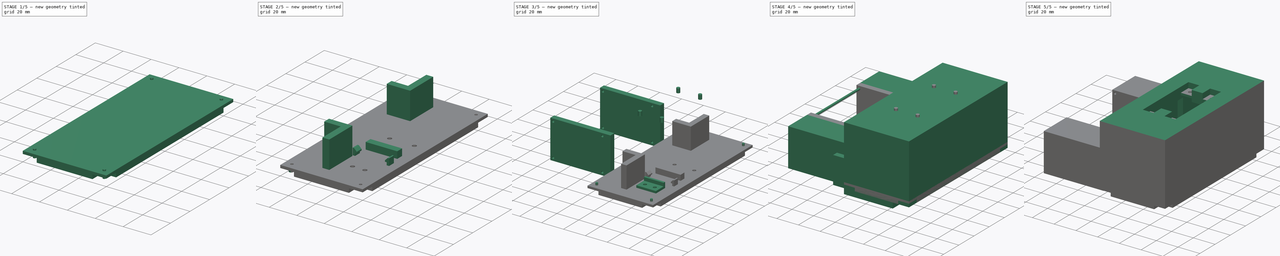
[diagram: build sequence overview — one tinted view per stage of 5, left to right]
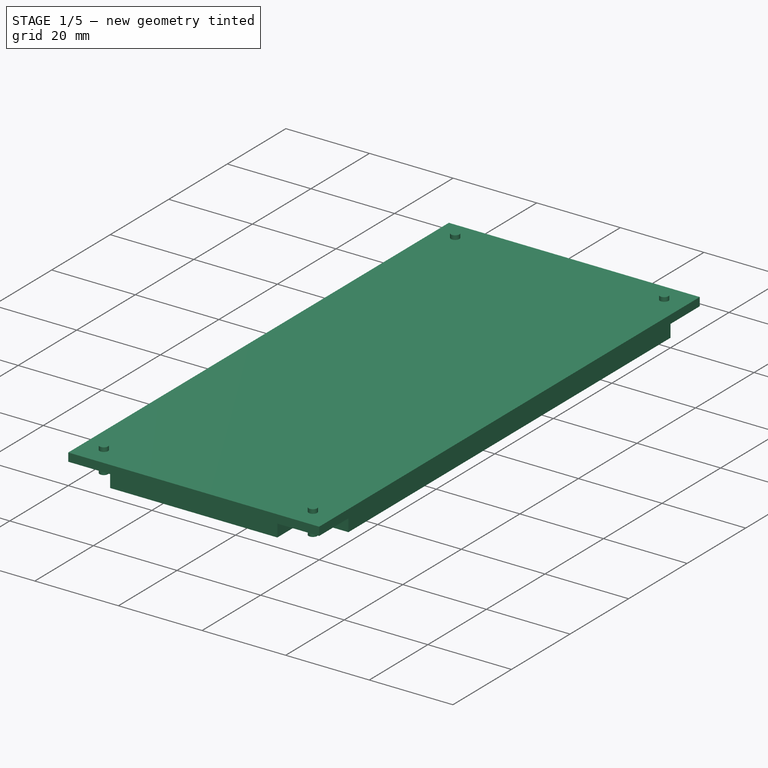
[diagram: stage 1 of 5 — iso view after this stage's code; geometry added in this stage tinted green]
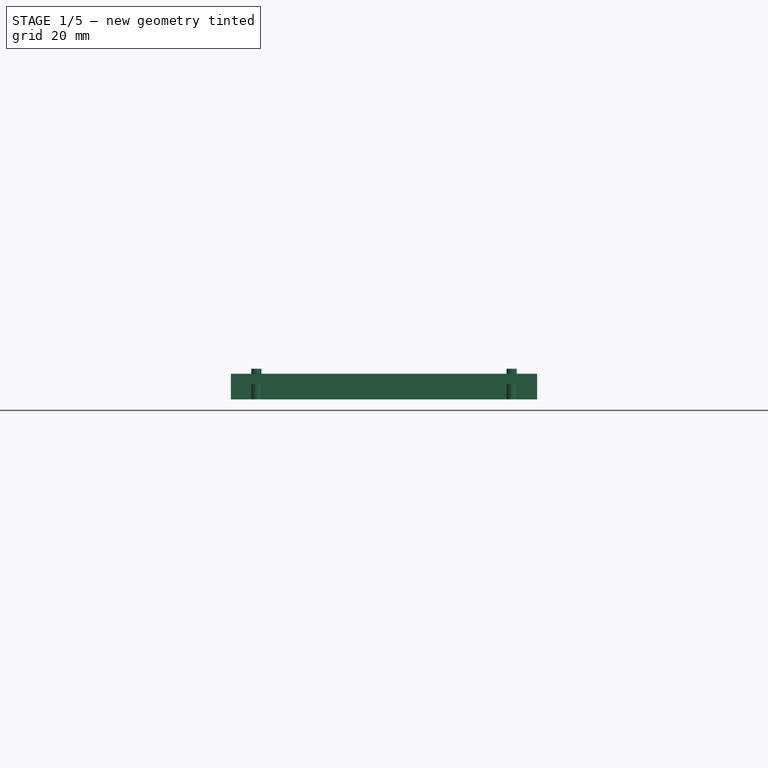
[diagram: stage 1 of 5 — front view after this stage's code; geometry added in this stage tinted green]
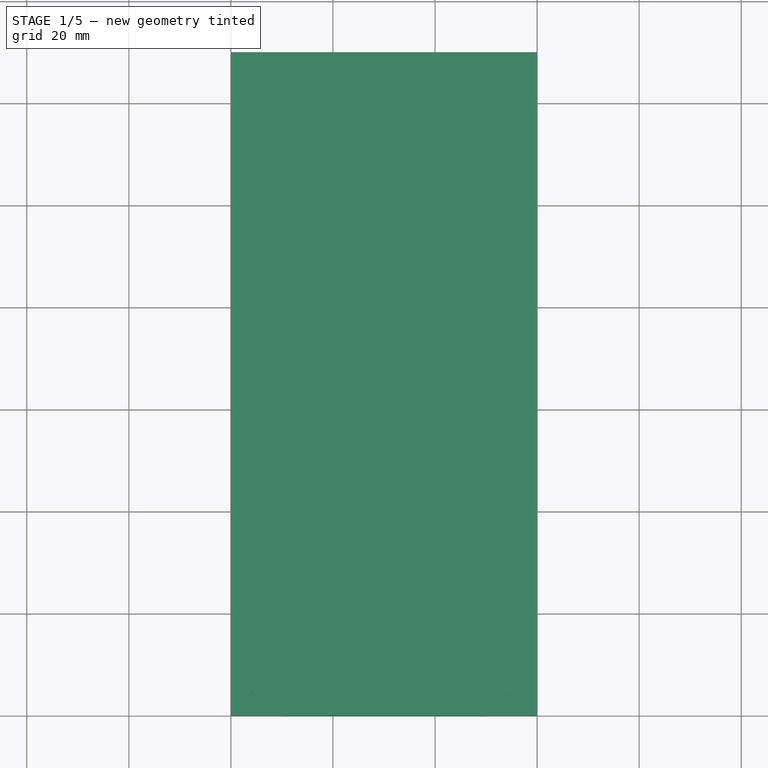
[diagram: stage 1 of 5 — top view after this stage's code; geometry added in this stage tinted green]
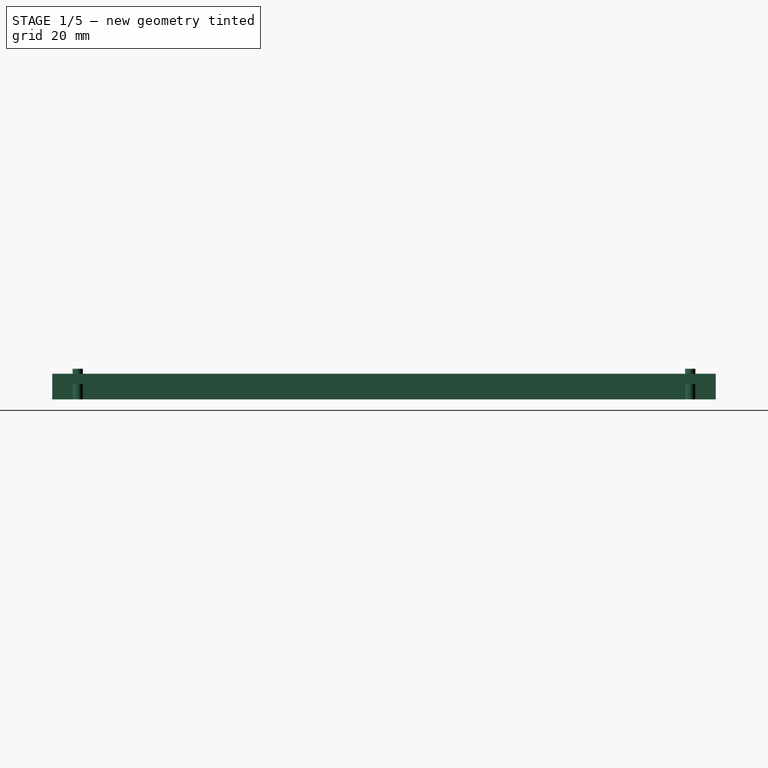
[diagram: stage 1 of 5 — right view after this stage's code; geometry added in this stage tinted green]
FCSTD DOCUMENT  (FreeCAD 0.16R6712 (Git))
Label: Locomocion
License: All rights reserved
LicenseURL: http://en.wikipedia.org/wiki/All_rights_reserved
objects: Part::Box×18, Part::FeaturePython×16, Part::Cut×16, Part::Cylinder×10, Part::MultiFuse×7, Sketcher::SketchObject×1, PartDesign::Pad×1, App::DocumentObjectGroup×1, Part::Chamfer×1
note: 71 computed .brp shape members not serialized (recipe doc carries the construction recipe); baked Part::Feature solids carry a one-line shape summary decoded from their .brp

FEATURE [Part::Box] Box010  label="Tapa_base"
  Height = 5
  Length = 60
  Width = 130
FEATURE [Part::Box] Box011  label="huecoTapa"
  Height = 3
  Length = 10
  Width = 10
FEATURE [Part::FeaturePython] Array008  label="huecosTapa"  # Draft array (typed FeaturePython)
  Angle = 360
  ArrayType = 0
  Axis = (0,0,1)
  Base = -> Box011
  Center = (0,0,0)
  Fuse = false
  IntervalAxis = (0,0,0)
  IntervalX = (50,0,0)
  IntervalY = (0,120,0)
  IntervalZ = (0,0,0)
  NumberPolar = 1
  NumberX = 2
  NumberY = 2
  NumberZ = 1
FEATURE [Part::Cut] Cut008  label="Tapa_base_2"
  Base = -> Box010
  Tool = -> Array008
FEATURE [Part::Cylinder] Cylinder003  label="AgujeroT"
  Angle = 360
  Height = 6
  Radius = 1
FEATURE [Part::FeaturePython] Array009  label="AgujerosT"  # Draft array (typed FeaturePython)
  Angle = 360
  ArrayType = 0
  Axis = (0,0,1)
  Base = -> Cylinder003
  Center = (0,0,0)
  Fuse = false
  IntervalAxis = (0,0,0)
  IntervalX = (50,0,0)
  IntervalY = (0,120,0)
  IntervalZ = (0,0,0)
  NumberPolar = 1
  NumberX = 2
  NumberY = 2
  NumberZ = 1
  Placement = pos=(5,5,0) rot=(0,0,1;0rad)
FEATURE [Part::Cylinder] Cylinder005  label="Cilindro"
  Angle = 360
  Height = 3
  Radius = 3.5
FEATURE [Part::Cylinder] Cylinder006  label="Cilindro001"
  Angle = 360
  Height = 5
  Radius = 1.5
FEATURE [Part::MultiFuse] Fusion004
  Shapes = -> [Cylinder005,Cylinder006]
FEATURE [Part::FeaturePython] Array014  label="AgujerosControlMotor"  # Draft array (typed FeaturePython)
  Angle = 360
  ArrayType = 0
  Axis = (0,0,1)
  Base = -> Fusion004
  Center = (0,0,0)
  Fuse = false
  IntervalAxis = (0,0,0)
  IntervalX = (18,0,0)
  IntervalY = (0,0,0)
  IntervalZ = (0,0,0)
  NumberPolar = 1
  NumberX = 2
  NumberY = 1
  NumberZ = 1
  Placement = pos=(32,68,0) rot=(0,0,1;0rad)
FEATURE [Part::Cylinder] Cylinder008  label="Tapa_base_AgujeroSoporteInt"
  Angle = 360
  Height = 2
  Placement = pos=(36.5,23,8) rot=(0,0,1;0rad)
  Radius = 1.5
FEATURE [Part::Cylinder] Cylinder009  label="Tapa_base_AgujeroSoporteExt"
  Angle = 360
  Height = 3
  Placement = pos=(36.5,23,5) rot=(0,0,1;0rad)
  Radius = 3.5
FEATURE [Part::MultiFuse] Fusion006  label="Tapa_base_AgujeroSoporte"
  Shapes = -> [Cylinder008,Cylinder009]
FEATURE [Part::FeaturePython] Array016  label="Tapa_base_AgujerosSoporte"  # Draft array (typed FeaturePython)
  Angle = 360
  ArrayType = 0
  Axis = (0,0,1)
  Base = -> Fusion006
  Center = (0,0,0)
  Fuse = false
  IntervalAxis = (0,0,0)
  IntervalX = (9,0,0)
  IntervalY = (0,0,0)
  IntervalZ = (0,0,0)
  NumberPolar = 1
  NumberX = 2
  NumberY = 1
  NumberZ = 1
  Placement = pos=(0,0,-5) rot=(0,0,1;0rad)
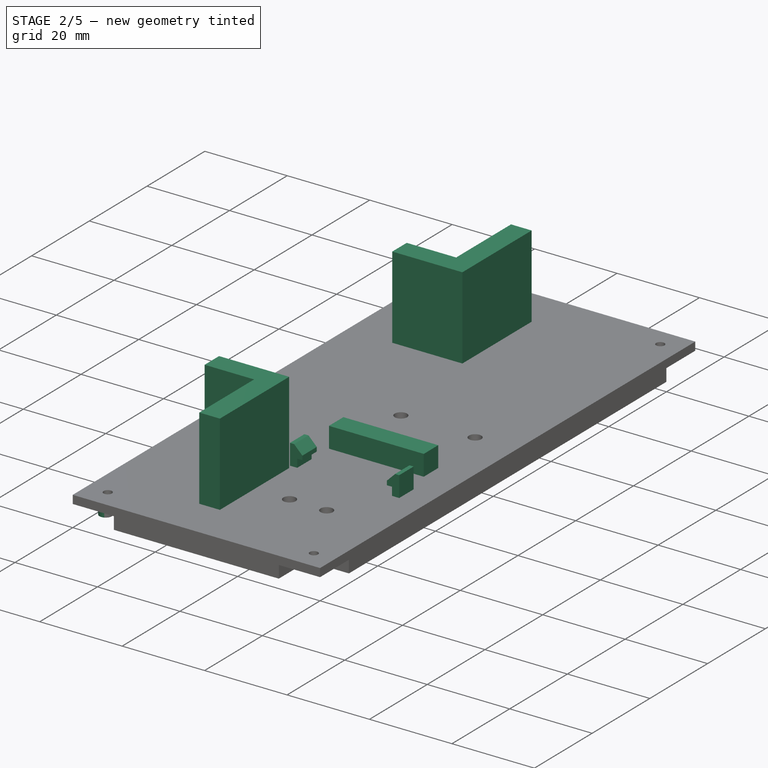
[diagram: stage 2 of 5 — iso view after this stage's code; geometry added in this stage tinted green]
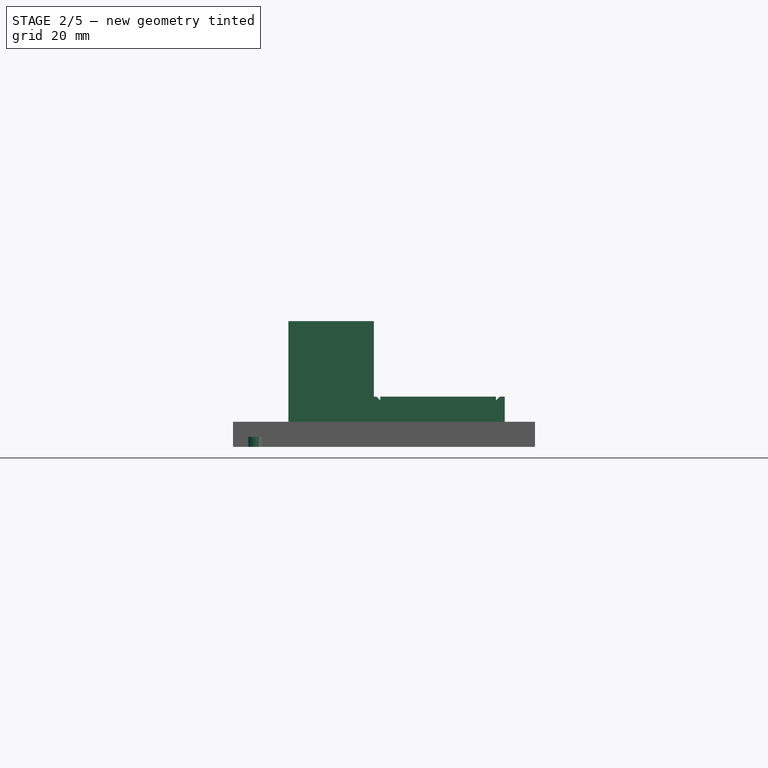
[diagram: stage 2 of 5 — front view after this stage's code; geometry added in this stage tinted green]
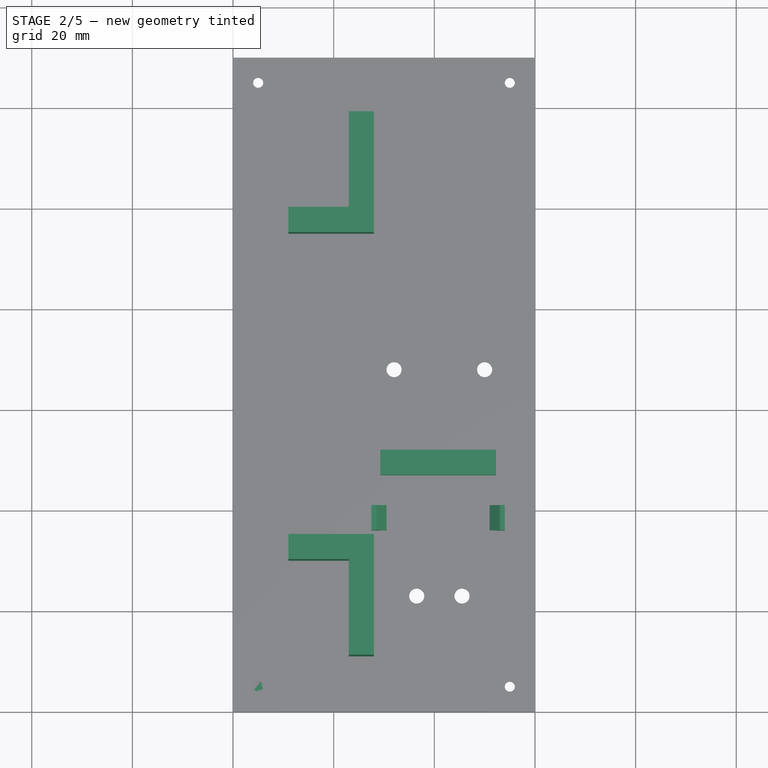
[diagram: stage 2 of 5 — top view after this stage's code; geometry added in this stage tinted green]
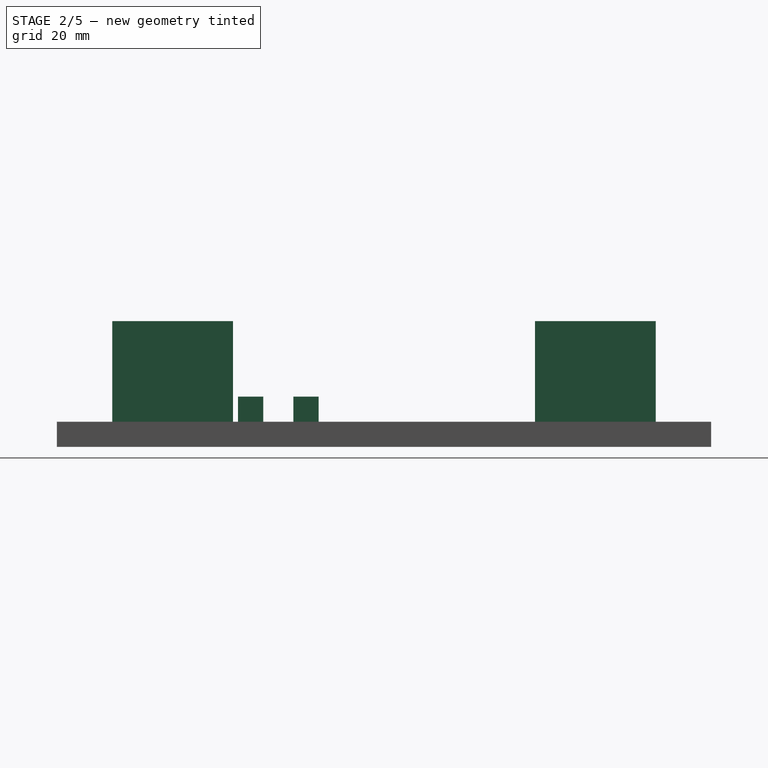
[diagram: stage 2 of 5 — right view after this stage's code; geometry added in this stage tinted green]
FEATURE [Part::Cut] Cut009  label="Tapa_base_3"
  Base = -> Cut008
  Tool = -> Array009
FEATURE [Part::Box] Box013  label="Clavija5v_base"
  Height = 5
  Length = 3
  Width = 5
FEATURE [Part::FeaturePython] Array012  label="Clavijas5v_base"  # Draft array (typed FeaturePython)
  Angle = 360
  ArrayType = 0
  Axis = (0,0,1)
  Base = -> Box013
  Center = (0,0,0)
  Fuse = false
  IntervalAxis = (0,0,0)
  IntervalX = (23.5,0,0)
  IntervalY = (0,0,0)
  IntervalZ = (0,0,0)
  NumberPolar = 1
  NumberX = 2
  NumberY = 1
  NumberZ = 1
FEATURE [Part::Box] Box014  label="Clavijas5v_hueco"
  Height = 2
  Length = 23
  Placement = pos=(1.75,0,0) rot=(0,0,1;0rad)
  Width = 5
FEATURE [Part::Cut] Cut011  label="Clavijas5v_base_2"
  Base = -> Array012
  Tool = -> Box014
FEATURE [Part::Box] Box015  label="Pared5v"
  Height = 5
  Length = 23
  Placement = pos=(1.75,22,0) rot=(0,0,1;0rad)
  Width = 5
FEATURE [Part::Cut] Cut012  label="Tapa_base_4"
  Base = -> Cut009
  Tool = -> Array014
FEATURE [Sketcher::SketchObject] Sketch
  ExternalGeometry = -> [Cut012]
  Placement = pos=(0,0,5) rot=(0,0,1;0rad)
  Support = -> Cut012 [Face3]
  sketch-geometry (20):
    g0: LineSegment StartX=11 StartY=100 StartZ=0 EndX=11 EndY=95 EndZ=0
    g1: LineSegment StartX=11 StartY=95 StartZ=0 EndX=28 EndY=95 EndZ=0
    g2: LineSegment StartX=28 StartY=95 StartZ=0 EndX=28 EndY=119 EndZ=0
    g3: LineSegment StartX=28 StartY=119 StartZ=0 EndX=23 EndY=119 EndZ=0
    g4: LineSegment StartX=23 StartY=119 StartZ=0 EndX=23 EndY=100 EndZ=0
    g5: LineSegment StartX=23 StartY=100 StartZ=0 EndX=11 EndY=100 EndZ=0
    g6: LineSegment [constr] StartX=0 StartY=100 StartZ=0 EndX=11 EndY=100 EndZ=0
    g7: LineSegment [constr] StartX=11 StartY=100 StartZ=0 EndX=11 EndY=95 EndZ=0
    g8: LineSegment [constr] StartX=11 StartY=95 StartZ=0 EndX=0 EndY=95 EndZ=0
    g9: LineSegment [constr] StartX=0 StartY=95 StartZ=0 EndX=0 EndY=100 EndZ=0
    g10: LineSegment [constr] StartX=11 StartY=35 StartZ=0 EndX=0 EndY=35 EndZ=0
    g11: LineSegment [constr] StartX=0 StartY=35 StartZ=0 EndX=0 EndY=30 EndZ=0
    g12: LineSegment [constr] StartX=0 StartY=30 StartZ=0 EndX=11 EndY=30 EndZ=0
    g13: LineSegment [constr] StartX=11 StartY=30 StartZ=0 EndX=11 EndY=35 EndZ=0
    g14: LineSegment StartX=11 StartY=35 StartZ=0 EndX=28 EndY=35 EndZ=0
    g15: LineSegment StartX=28 StartY=35 StartZ=0 EndX=28 EndY=11 EndZ=0
    g16: LineSegment StartX=28 StartY=11 StartZ=0 EndX=23 EndY=11 EndZ=0
    g17: LineSegment StartX=23 StartY=11 StartZ=0 EndX=23 EndY=30 EndZ=0
    g18: LineSegment StartX=23 StartY=30 StartZ=0 EndX=11 EndY=30 EndZ=0
    g19: LineSegment StartX=11 StartY=30 StartZ=0 EndX=11 EndY=35 EndZ=0
  constraints (62):
    c: Coincident(g0,g1)
    c: Horizontal(g1)
    c: Coincident(g1,g2)
    c: Coincident(g2,g3)
    c: Coincident(g3,g4)
    c: Vertical(g4)
    c: Coincident(g4,g5)
    c: Coincident(g5,g0)
    c: Horizontal(g5)
    c: Horizontal(g3)
    c: Vertical(g2)
    c: Vertical(g0)
    c: DistanceY(g2,g2) = 24
    c: DistanceY(g0,g0) = 5
    c: DistanceX(g1,g1) = 17
    c: DistanceX(g5,g5) = 12
    c: Coincident(g6,g7)
    c: Coincident(g7,g8)
    c: Coincident(g8,g9)
    c: Coincident(g9,g6)
    c: Horizontal(g6)
    c: Horizontal(g8)
    c: Vertical(g7)
    c: Vertical(g9)
    c: Equal(g6,g8)
    c: Equal(g9,g7)
    c: DistanceX(g8,g8) = 11
    c: DistanceY(g9,g9) = 5
    c: Coincident(g10,g11)
    c: Coincident(g11,g12)
    c: Coincident(g12,g13)
    c: Coincident(g13,g10)
    c: Horizontal(g10)
    c: Horizontal(g12)
    c: Vertical(g11)
    c: Vertical(g13)
    c: Equal(g10,g12)
    c: Equal(g13,g11)
    c: Equal(g8,g12) = 11
    c: Equal(g9,g13) = 5
    c: PointOnObject(g6,g-4)
    c: DistanceY(g6,g-4) = 30
    c: Coincident(g0,g7)
    c: PointOnObject(g11,g-4)
    c: DistanceY(g-1,g11) = 30
    c: Horizontal(g14)
    c: Coincident(g14,g15)
    c: Vertical(g15)
    c: Coincident(g15,g16)
    c: Horizontal(g16)
    c: Coincident(g16,g17)
    c: Vertical(g17)
    c: Coincident(g17,g18)
    c: Horizontal(g18)
    c: Coincident(g18,g19)
    c: Coincident(g19,g14)
    c: Vertical(g19)
    c: DistanceY(g15,g15) = 24
    c: DistanceX(g18,g18) = 12
    c: DistanceX(g14,g14) = 17
    c: DistanceY(g19,g19) = 5
    c: Coincident(g12,g18)
FEATURE [PartDesign::Pad] Pad  label="Tapa_base_5"
  Length = 20
  Length2 = 100
  Sketch = -> Sketch
  Type = 0
FEATURE [Part::Cylinder] Cylinder007  label="Soporte5v_agujero"
  Angle = 360
  Height = 2
  Radius = 1.5
FEATURE [Part::FeaturePython] Array015  label="Soporte5v_agujeros"  # Draft array (typed FeaturePython)
  Angle = 360
  ArrayType = 0
  Axis = (0,0,1)
  Base = -> Cylinder007
  Center = (0,0,0)
  Fuse = false
  IntervalAxis = (0,0,0)
  IntervalX = (9,0,0)
  IntervalY = (0,0,0)
  IntervalZ = (0,0,0)
  NumberPolar = 1
  NumberX = 2
  NumberY = 1
  NumberZ = 1
  Placement = pos=(4.5,5,0) rot=(0,0,1;0rad)
FEATURE [Part::Chamfer] Chamfer  label="Clavijas5v"
  Base = -> Cut011
  Edges = 2 edges r=2: [Edge11,Edge20]
  Placement = pos=(0,11,0) rot=(0,0,1;0rad)
FEATURE [Part::MultiFuse] Fusion005  label="ParedYClavijas"
  Placement = pos=(27.5,25,5) rot=(0,0,1;0rad)
  Shapes = -> [Chamfer,Box015]
FEATURE [Part::Cut] Cut015  label="Tapa_base_6"
  Base = -> Pad
  Tool = -> Array016
FEATURE [Part::MultiFuse] Fusion007  label="Tapa"
  Shapes = -> [Fusion005,Cut015]
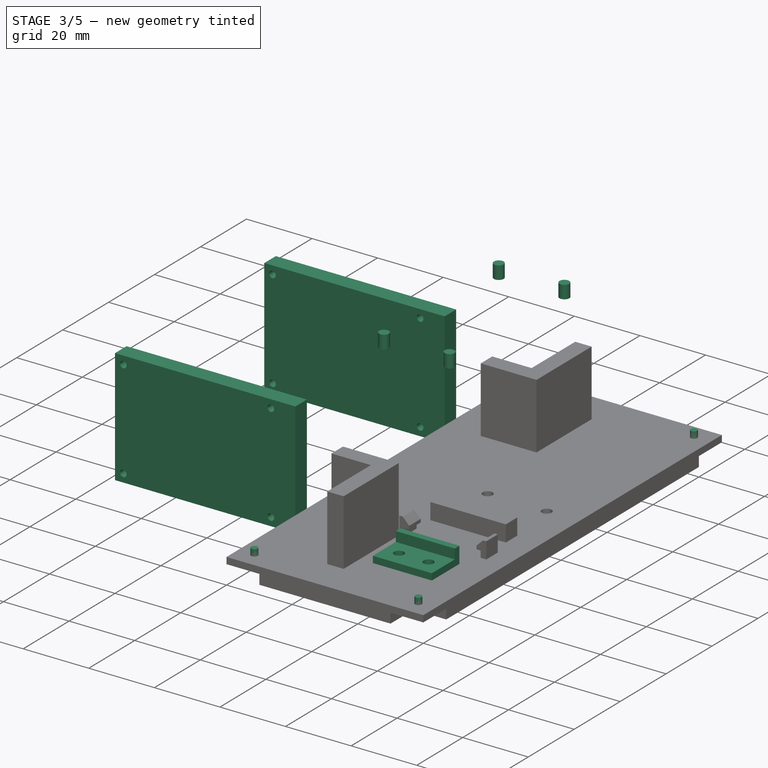
[diagram: stage 3 of 5 — iso view after this stage's code; geometry added in this stage tinted green]
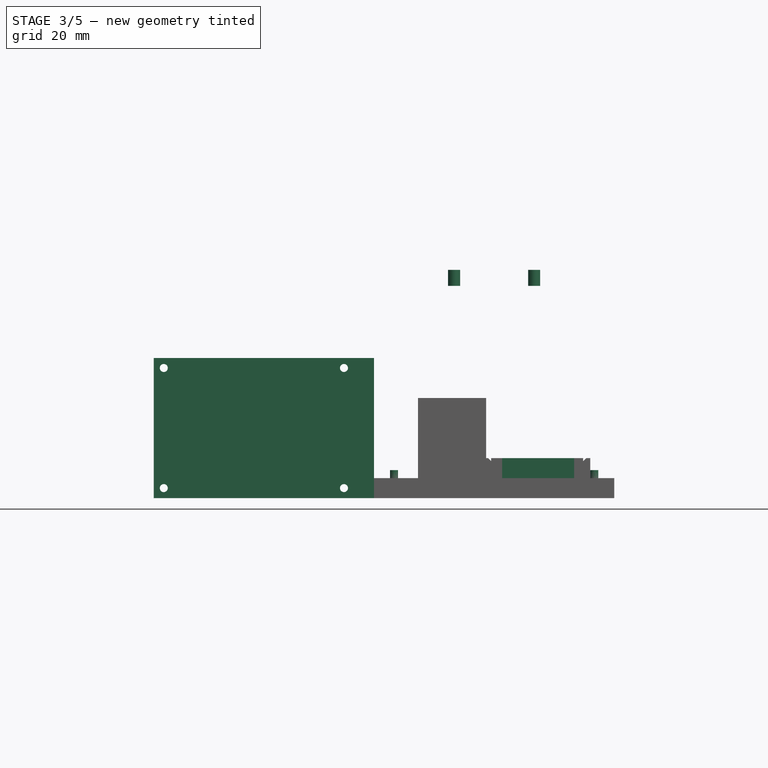
[diagram: stage 3 of 5 — front view after this stage's code; geometry added in this stage tinted green]
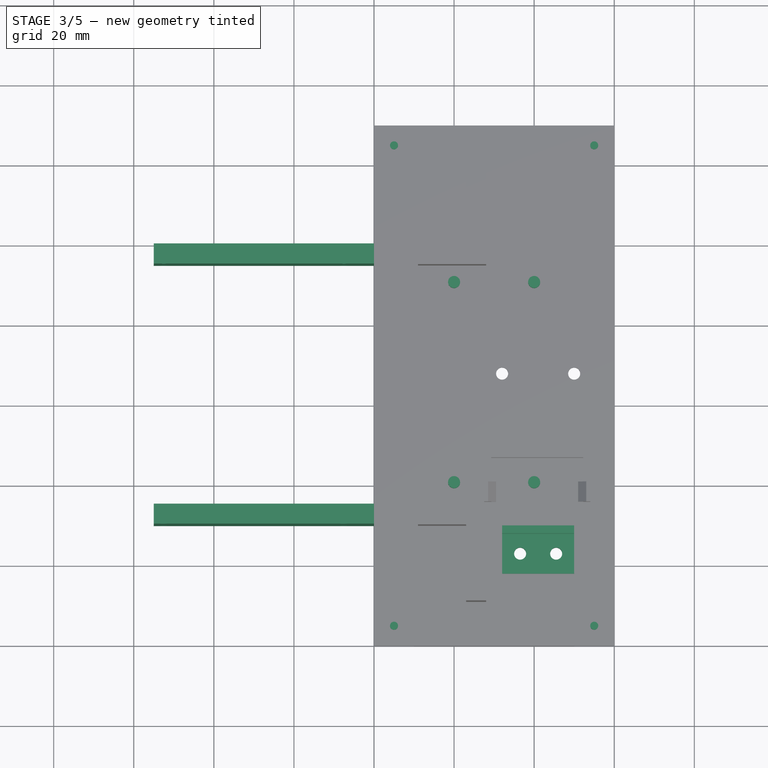
[diagram: stage 3 of 5 — top view after this stage's code; geometry added in this stage tinted green]
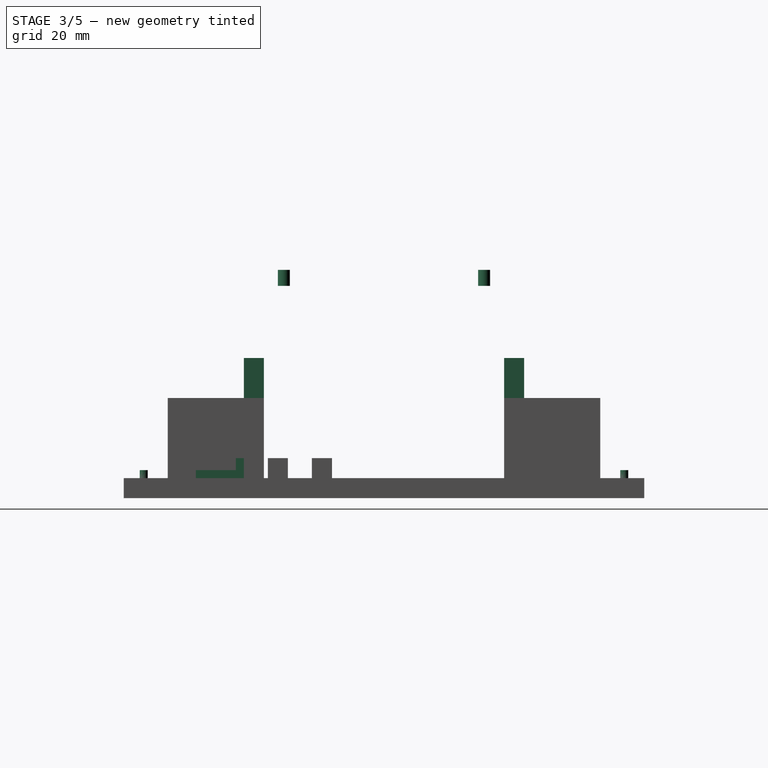
[diagram: stage 3 of 5 — right view after this stage's code; geometry added in this stage tinted green]
FEATURE [Part::Cylinder] Cylinder001  label="Agujero_conector"
  Angle = 360
  Height = 4
  Radius = 1.5
FEATURE [Part::FeaturePython] Array006  label="Agujeros_conector"  # Draft array (typed FeaturePython)
  Angle = 360
  ArrayType = 0
  Axis = (0,0,1)
  Base = -> Cylinder001
  Center = (0,0,0)
  Fuse = false
  IntervalAxis = (0,0,0)
  IntervalX = (20,0,0)
  IntervalY = (0,50,0)
  IntervalZ = (0,0,0)
  NumberPolar = 1
  NumberX = 2
  NumberY = 2
  NumberZ = 1
  Placement = pos=(20,40,53) rot=(0,0,1;0rad)
FEATURE [Part::Cylinder] Cylinder002  label="AgujeroTapa"
  Angle = 360
  Height = 3
  Radius = 1
FEATURE [Part::FeaturePython] Array007  label="AgujerosTapa"  # Draft array (typed FeaturePython)
  Angle = 360
  ArrayType = 0
  Axis = (0,0,1)
  Base = -> Cylinder002
  Center = (0,0,0)
  Fuse = false
  IntervalAxis = (0,0,0)
  IntervalX = (50,0,0)
  IntervalY = (0,120,0)
  IntervalZ = (0,0,0)
  NumberPolar = 1
  NumberX = 2
  NumberY = 2
  NumberZ = 1
  Placement = pos=(5,5,4) rot=(0,0,1;0rad)
FEATURE [Part::Box] Box012  label="TapaMotor_base"
  Height = 35
  Length = 55
  Width = 5
FEATURE [Part::Cylinder] Cylinder004  label="AgujeroTapaMotor"
  Angle = 360
  Height = 10
  Placement = pos=(0,0,0) rot=(1,0,0;1.5708rad)
  Radius = 1
FEATURE [Part::FeaturePython] Array010  label="AgujerosTapaMotor"  # Draft array (typed FeaturePython)
  Angle = 360
  ArrayType = 0
  Axis = (0,0,1)
  Base = -> Cylinder004
  Center = (0,0,0)
  Fuse = false
  IntervalAxis = (0,0,0)
  IntervalX = (45,0,0)
  IntervalY = (0,0,30)
  IntervalZ = (0,0,0)
  NumberPolar = 1
  NumberX = 2
  NumberY = 2
  NumberZ = 1
  Placement = pos=(2.5,8,2.5) rot=(0,0,1;0rad)
FEATURE [Part::Cut] Cut010  label="TapaMotor_base_2"
  Base = -> Box012
  Tool = -> Array010
FEATURE [Part::FeaturePython] Array011  label="TapasMotor"  # Draft array (typed FeaturePython)
  Angle = 360
  ArrayType = 0
  Axis = (0,0,1)
  Base = -> Cut010
  Center = (0,0,0)
  Fuse = false
  IntervalAxis = (0,0,0)
  IntervalX = (0,0,0)
  IntervalY = (0,65,0)
  IntervalZ = (0,0,0)
  NumberPolar = 1
  NumberX = 1
  NumberY = 2
  NumberZ = 1
  Placement = pos=(-55,30,0) rot=(0,0,1;0rad)
FEATURE [App::DocumentObjectGroup] Grupo  label="Tapa_partes"
  Group = -> [Cut012]
FEATURE [Part::Box] Box016  label="Soporte5v_base"
  Height = 5
  Length = 18
  Width = 12
FEATURE [Part::Box] Box017  label="Soporte5v_hueco"
  Height = 3
  Length = 18
  Placement = pos=(0,0,2) rot=(0,0,1;0rad)
  Width = 10
FEATURE [Part::Cut] Cut013  label="Soporte5v_base_2"
  Base = -> Box016
  Tool = -> Box017
FEATURE [Part::Cut] Cut014  label="Soporte5v_base_3"
  Base = -> Cut013
  Placement = pos=(32,18,5) rot=(0,0,1;0rad)
  Tool = -> Array015
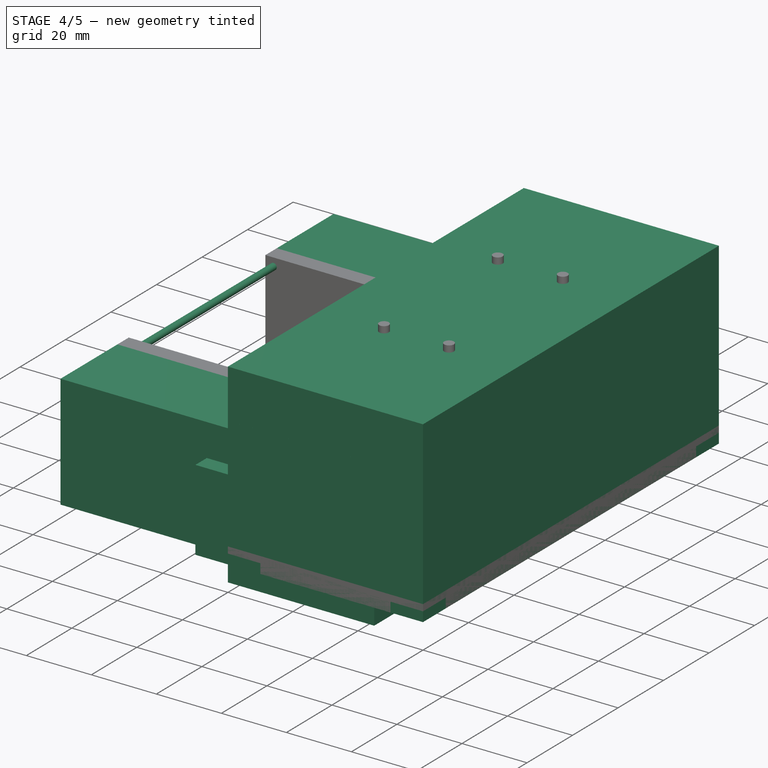
[diagram: stage 4 of 5 — iso view after this stage's code; geometry added in this stage tinted green]
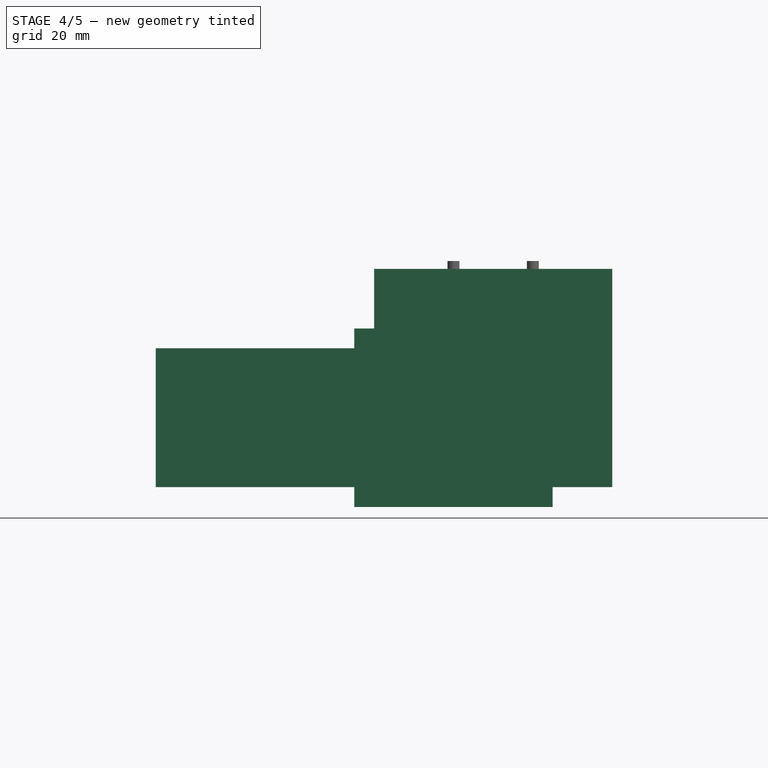
[diagram: stage 4 of 5 — front view after this stage's code; geometry added in this stage tinted green]
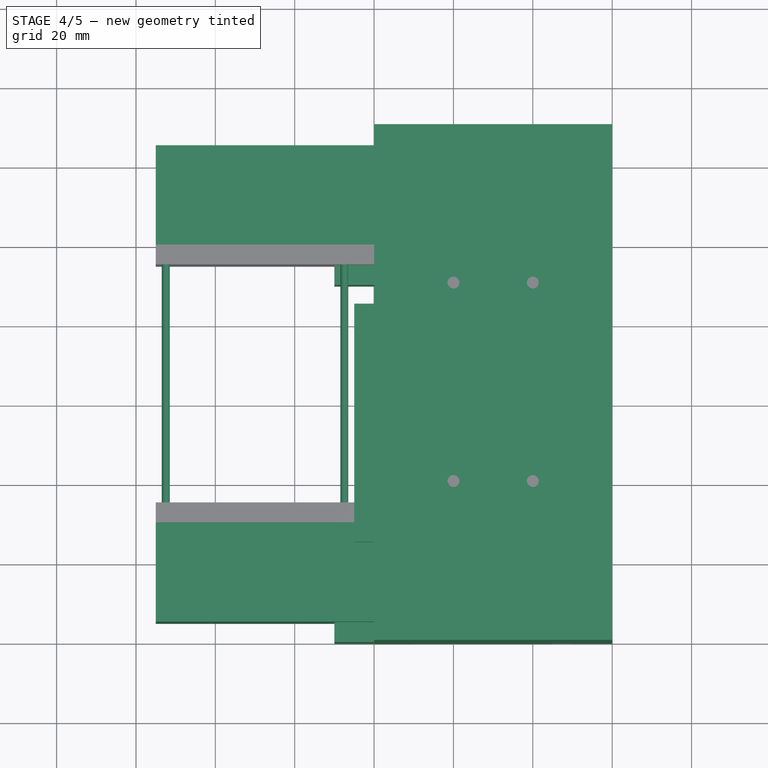
[diagram: stage 4 of 5 — top view after this stage's code; geometry added in this stage tinted green]
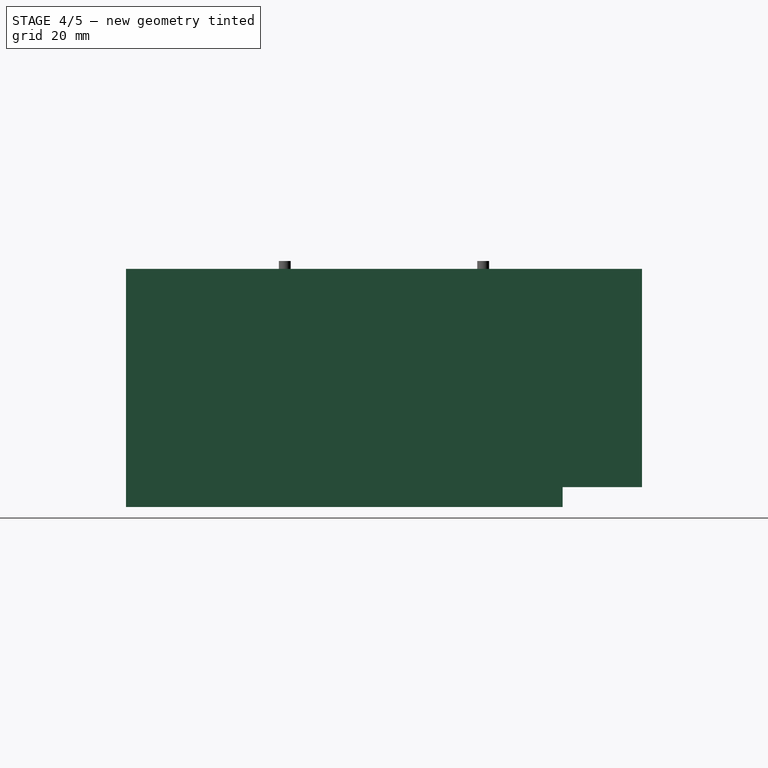
[diagram: stage 4 of 5 — right view after this stage's code; geometry added in this stage tinted green]
FEATURE [Part::Box] Box  label="Motor_ext"
  Height = 35
  Length = 55
  Width = 30
FEATURE [Part::FeaturePython] Array  label="Motores_ext"  # Draft array (typed FeaturePython)
  Angle = 360
  ArrayType = 0
  Axis = (0,0,1)
  Base = -> Box
  Center = (0,0,0)
  Fuse = false
  IntervalAxis = (0,0,0)
  IntervalX = (0,0,0)
  IntervalY = (0,90,0)
  IntervalZ = (0,0,0)
  NumberPolar = 1
  NumberX = 1
  NumberY = 2
  NumberZ = 1
FEATURE [Part::Box] Box001  label="Motor_int"
  Height = 25
  Length = 50
  Width = 20
FEATURE [Part::FeaturePython] Array001  label="Motores_int"  # Draft array (typed FeaturePython)
  Angle = 360
  ArrayType = 0
  Axis = (0,0,1)
  Base = -> Box001
  Center = (0,0,0)
  Fuse = false
  IntervalAxis = (0,0,0)
  IntervalX = (0,0,0)
  IntervalY = (0,90,0)
  IntervalZ = (0,0,0)
  NumberPolar = 1
  NumberX = 1
  NumberY = 2
  NumberZ = 1
  Placement = pos=(5,5,5) rot=(0,0,1;0rad)
FEATURE [Part::Box] Box005  label="Cubo003"
  Height = 45
  Length = 45
  Placement = pos=(0,0,-5) rot=(0,0,1;0rad)
  Width = 110
FEATURE [Part::Box] Box006  label="Cubo004"
  Height = 45
  Length = 5
  Placement = pos=(-5,25,-5) rot=(0,0,1;0rad)
  Width = 60
FEATURE [Part::Box] Box007  label="Cubo005"
  Height = 25
  Length = 10
  Width = 20
FEATURE [Part::FeaturePython] Array004  # Draft array (typed FeaturePython)
  Angle = 360
  ArrayType = 0
  Axis = (0,0,1)
  Base = -> Box007
  Center = (0,0,0)
  Fuse = false
  IntervalAxis = (0,0,0)
  IntervalX = (0,0,0)
  IntervalY = (0,90,0)
  IntervalZ = (0,0,0)
  NumberPolar = 1
  NumberX = 1
  NumberY = 2
  NumberZ = 1
  Placement = pos=(-10,0,0) rot=(0,0,1;0rad)
FEATURE [Part::Box] Box008  label="Carcasa_base"
  Height = 55
  Length = 60
  Width = 130
FEATURE [Part::Cut] Cut  label="Motores"
  Base = -> Array
  Placement = pos=(-55,5,0) rot=(0,0,1;0rad)
  Tool = -> Array001
FEATURE [Part::Box] Box009  label="Cubo006"
  Height = 35
  Length = 55
  Placement = pos=(-55,30,0) rot=(0,0,1;0rad)
  Width = 70
FEATURE [Part::Cut] Cut004  label="CajaMotores"
  Base = -> Cut
  Tool = -> Box009
FEATURE [Part::Cylinder] Cylinder  label="AgujeroMotor"
  Angle = 360
  Height = 74
  Placement = pos=(0,0,0) rot=(1,0,0;1.5708rad)
  Radius = 1
FEATURE [Part::FeaturePython] Array005  label="AgujerosMotor"  # Draft array (typed FeaturePython)
  Angle = 360
  ArrayType = 0
  Axis = (0,0,1)
  Base = -> Cylinder
  Center = (0,0,0)
  Fuse = false
  IntervalAxis = (0,0,0)
  IntervalX = (45,0,0)
  IntervalY = (0,0,30)
  IntervalZ = (0,0,0)
  NumberPolar = 1
  NumberX = 2
  NumberY = 2
  NumberZ = 1
  Placement = pos=(-52.5,102,2.5) rot=(0,0,1;0rad)
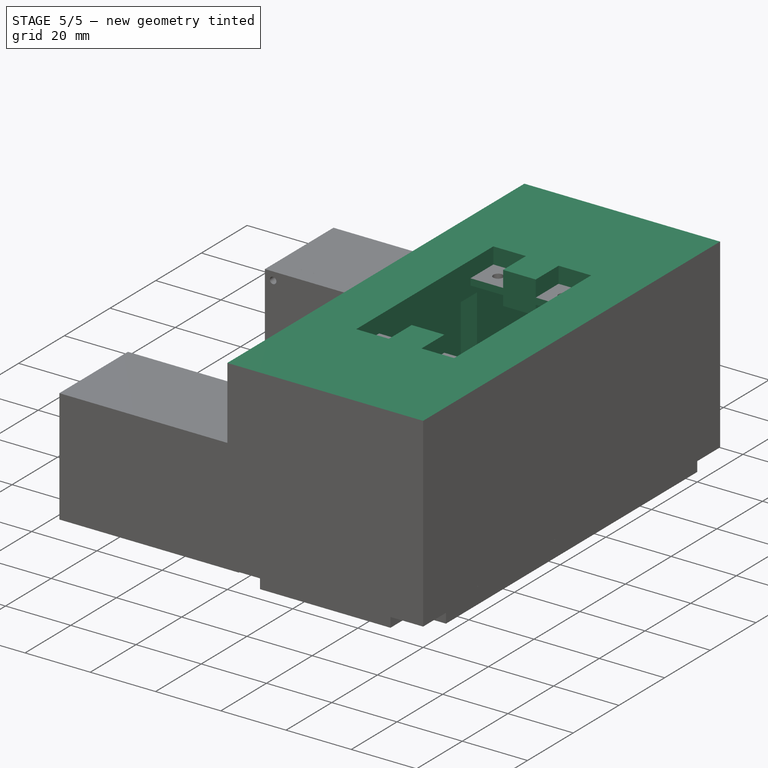
[diagram: stage 5 of 5 — iso view after this stage's code; geometry added in this stage tinted green]
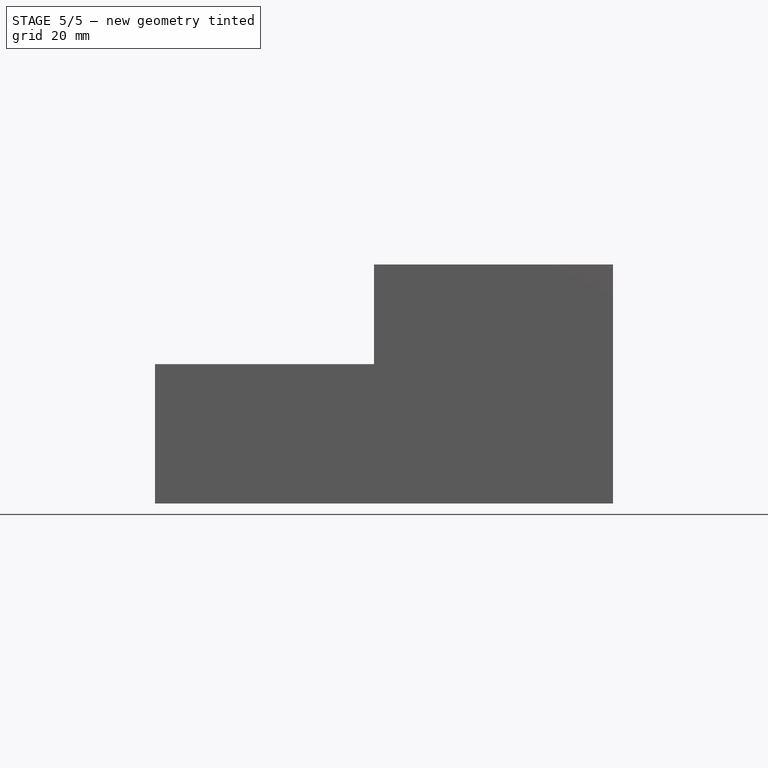
[diagram: stage 5 of 5 — front view after this stage's code; geometry added in this stage tinted green]
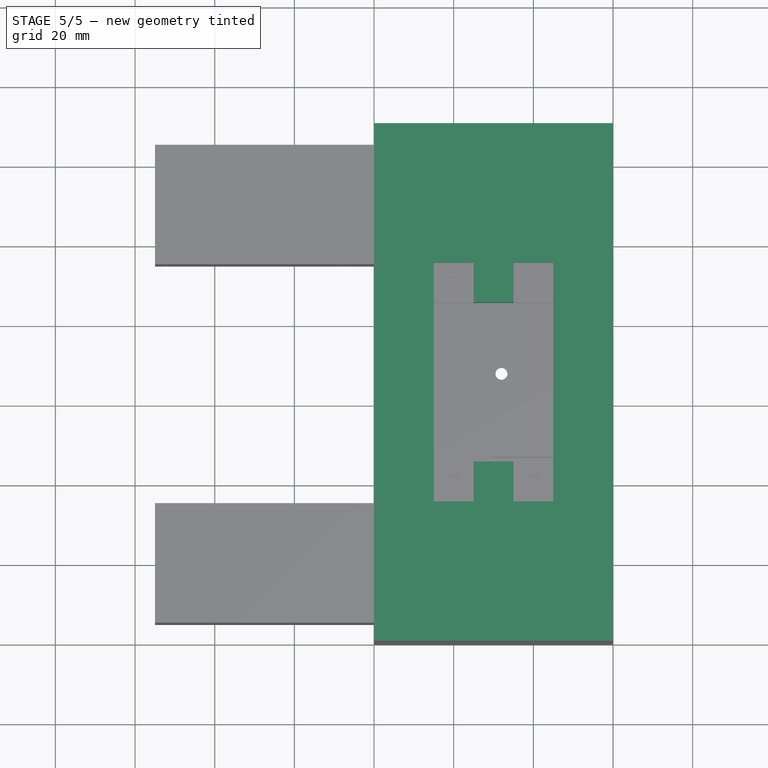
[diagram: stage 5 of 5 — top view after this stage's code; geometry added in this stage tinted green]
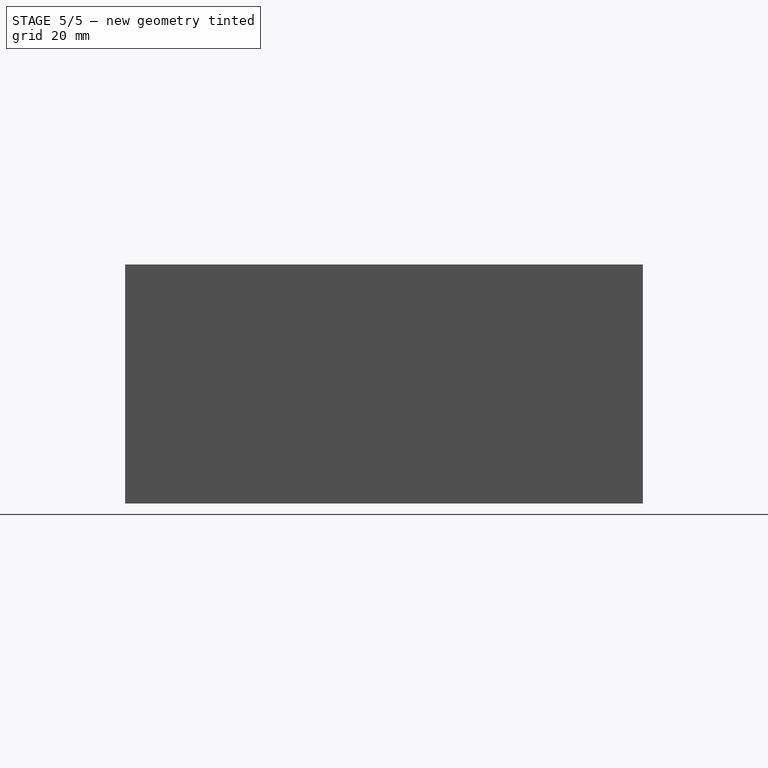
[diagram: stage 5 of 5 — right view after this stage's code; geometry added in this stage tinted green]
FEATURE [Part::Box] Box002  label="Cubo"
  Height = 10
  Length = 30
  Width = 60
FEATURE [Part::Box] Box003  label="Cubo001"
  Height = 2
  Length = 10
  Placement = pos=(0,0,3) rot=(0,0,1;0rad)
  Width = 10
FEATURE [Part::FeaturePython] Array002  # Draft array (typed FeaturePython)
  Angle = 360
  ArrayType = 0
  Axis = (0,0,1)
  Base = -> Box003
  Center = (0,0,0)
  Fuse = false
  IntervalAxis = (0,0,0)
  IntervalX = (20,0,0)
  IntervalY = (0,50,0)
  IntervalZ = (0,0,0)
  NumberPolar = 1
  NumberX = 2
  NumberY = 2
  NumberZ = 1
FEATURE [Part::Cut] Cut001
  Base = -> Box002
  Tool = -> Array002
FEATURE [Part::Box] Box004  label="Cubo002"
  Height = 10
  Length = 10
  Placement = pos=(10,0,0) rot=(0,0,1;0rad)
  Width = 10
FEATURE [Part::FeaturePython] Array003  # Draft array (typed FeaturePython)
  Angle = 360
  ArrayType = 0
  Axis = (0,0,1)
  Base = -> Box004
  Center = (0,0,0)
  Fuse = false
  IntervalAxis = (0,0,0)
  IntervalX = (0,0,0)
  IntervalY = (0,50,0)
  IntervalZ = (0,0,0)
  NumberPolar = 1
  NumberX = 1
  NumberY = 2
  NumberZ = 1
FEATURE [Part::Cut] Cut002
  Base = -> Cut001
  Placement = pos=(5,25,40) rot=(0,0,1;0rad)
  Tool = -> Array003
FEATURE [Part::MultiFuse] Fusion
  Placement = pos=(0,0,5) rot=(0,0,1;0rad)
  Shapes = -> [Cut002,Box005,Box006]
FEATURE [Part::MultiFuse] Fusion001  label="InteriorCarcasa"
  Placement = pos=(10,10,0) rot=(0,0,1;0rad)
  Shapes = -> [Fusion,Array004]
FEATURE [Part::Cut] Cut003  label="Carcasa_base_2"
  Base = -> Box008
  Placement = pos=(0,0,5) rot=(0,0,1;0rad)
  Tool = -> Fusion001
FEATURE [Part::MultiFuse] Fusion002  label="Carcasa_base_3"
  Shapes = -> [Cut003,Cut004]
FEATURE [Part::Cut] Cut005  label="Carcasa_base_4"
  Base = -> Fusion002
  Tool = -> Array005
FEATURE [Part::Cut] Cut006  label="Carcasa_base_5"
  Base = -> Cut005
  Tool = -> Array006
FEATURE [Part::Cut] Cut007  label="Carcasa_Locomocion"
  Base = -> Cut006
  Tool = -> Array007
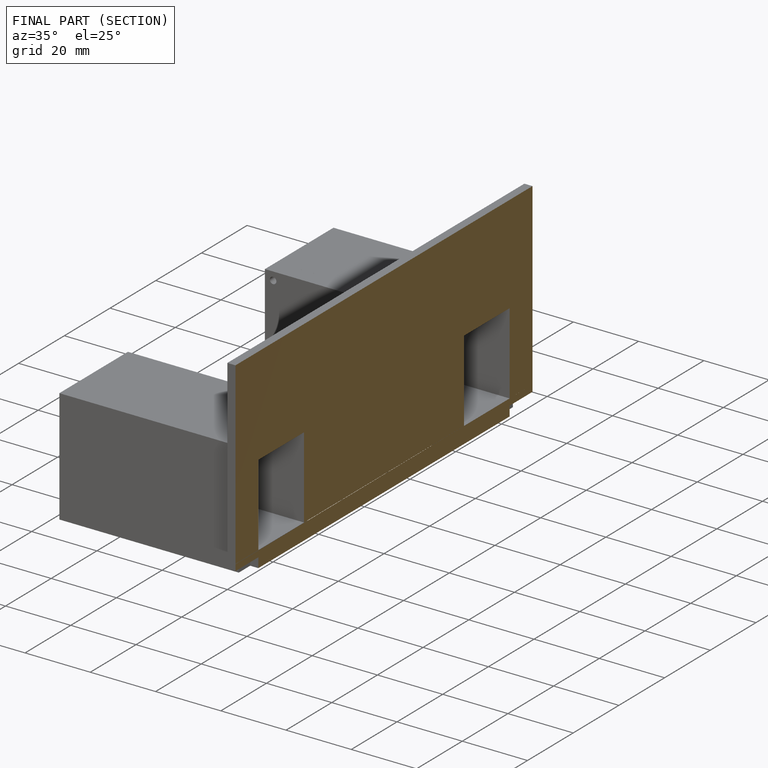
[diagram: finished part — half-section view (interior)]
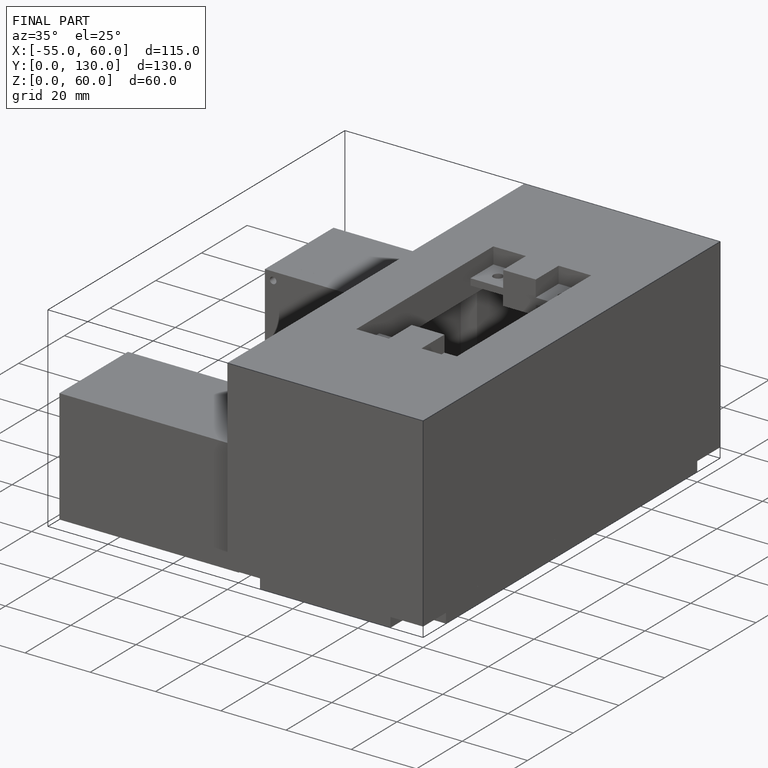
[diagram: finished part — iso view with bounding-box wireframe]
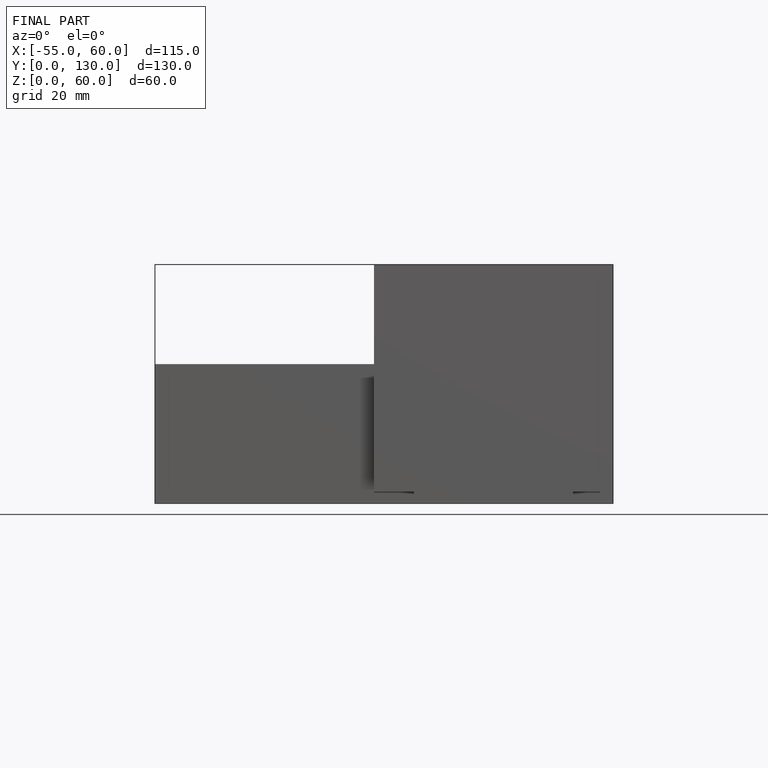
[diagram: finished part — front view with bounding-box wireframe]
